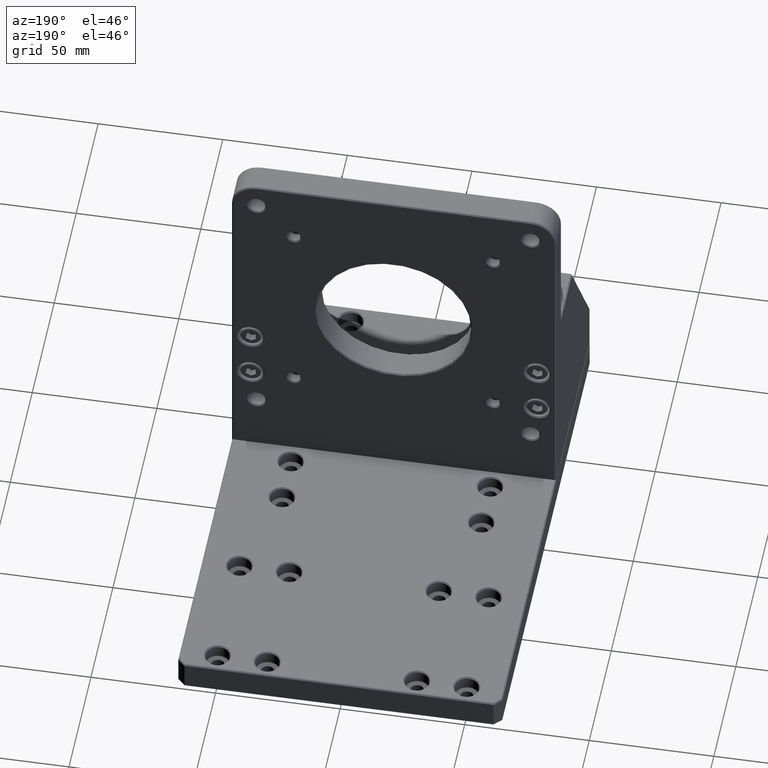
[diagram: clean part render]
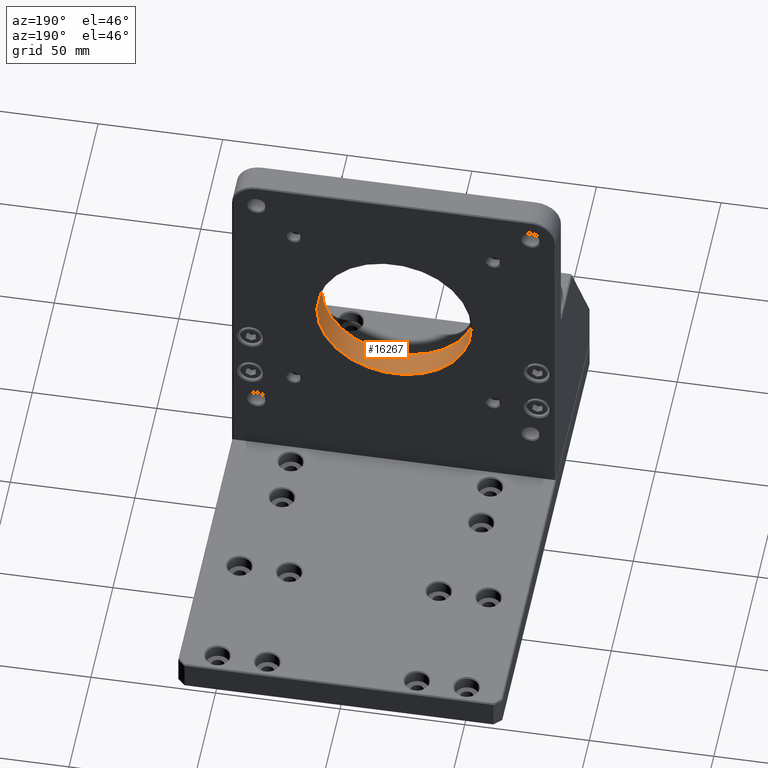
[diagram: same view with one face highlighted and labeled with its STEP entity id]
A machine part, auxiliary view. The second image highlights one B-rep face of the part: STEP entity #16267.
In plain terms, the highlighted cylindrical surface (partial cylindrical patch) has radius 31 mm, axis along (0, -1, 0).
Its self-contained STEP definition (entity closure, byte-faithful):
#45 = LINE ( 'NONE', #1766, #15360 ) ;
#748 = VERTEX_POINT ( 'NONE', #2311 ) ;
#1060 = CIRCLE ( 'NONE', #13923, 31.00000000000000000 ) ;
#1680 = CARTESIAN_POINT ( 'NONE',  ( -31.00000000000114397, -22.99999999999986855, 91.99999999999965894 ) ) ;
#1686 = VERTEX_POINT ( 'NONE', #1680 ) ;
#1766 = CARTESIAN_POINT ( 'NONE',  ( -31.00000000000114397, -22.49999999999987566, 91.99999999999964473 ) ) ;
#2311 = CARTESIAN_POINT ( 'NONE',  ( -31.00000000000106581, -33.99999999999989342, 91.99999999999965894 ) ) ;
#3359 = DIRECTION ( 'NONE',  ( -6.982962677686217801E-15, 1.000000000000000000, -3.491481338843133355E-15 ) ) ;
#3458 = CARTESIAN_POINT ( 'NONE',  ( -1.145495027637149810E-12, -22.49999999999965894, 92.00000000000008527 ) ) ;
#3925 = EDGE_CURVE ( 'NONE', #748, #12133, #1060, .T. ) ;
#4640 = DIRECTION ( 'NONE',  ( 6.982962677686217801E-15, -1.000000000000000000, 3.491481338843133355E-15 ) ) ;
#6203 = ORIENTED_EDGE ( 'NONE', *, *, #3925, .T. ) ;
#6626 = CARTESIAN_POINT ( 'NONE',  ( 30.99999999999885603, -22.49999999999944578, 92.00000000000051159 ) ) ;
#6803 = AXIS2_PLACEMENT_3D ( 'NONE', #8535, #3359, #12466 ) ;
#7205 = DIRECTION ( 'NONE',  ( 6.982962677686217801E-15, -1.000000000000000000, 3.491481338843133355E-15 ) ) ;
#7214 = DIRECTION ( 'NONE',  ( 1.000000000000000000, 6.938893903907228378E-15, 1.387778780781445676E-14 ) ) ;
#8535 = CARTESIAN_POINT ( 'NONE',  ( -1.142003546298306791E-12, -22.99999999999965183, 92.00000000000009948 ) ) ;
#10338 = DIRECTION ( 'NONE',  ( 6.982962677686217801E-15, -1.000000000000000000, 3.491481338843133355E-15 ) ) ;
#10824 = EDGE_CURVE ( 'NONE', #1686, #748, #45, .T. ) ;
#11261 = EDGE_LOOP ( 'NONE', ( #17060, #13381, #6203, #14200 ) ) ;
#11676 = CIRCLE ( 'NONE', #6803, 31.00000000000000000 ) ;
#11967 = VECTOR ( 'NONE', #12162, 1000.000000000000000 ) ;
#12133 = VERTEX_POINT ( 'NONE', #12836 ) ;
#12162 = DIRECTION ( 'NONE',  ( 6.982962677686217801E-15, -1.000000000000000000, 3.491481338843133355E-15 ) ) ;
#12358 = CARTESIAN_POINT ( 'NONE',  ( 30.99999999999885958, -22.99999999999943867, 92.00000000000052580 ) ) ;
#12466 = DIRECTION ( 'NONE',  ( 1.000000000000000000, 6.938893903907228378E-15, 1.387778780781445676E-14 ) ) ;
#12751 = CARTESIAN_POINT ( 'NONE',  ( -1.065190956843758336E-12, -33.99999999999967315, 92.00000000000012790 ) ) ;
#12836 = CARTESIAN_POINT ( 'NONE',  ( 30.99999999999893419, -33.99999999999945999, 92.00000000000055422 ) ) ;
#13381 = ORIENTED_EDGE ( 'NONE', *, *, #10824, .T. ) ;
#13923 = AXIS2_PLACEMENT_3D ( 'NONE', #12751, #4640, #7214 ) ;
#14200 = ORIENTED_EDGE ( 'NONE', *, *, #16836, .F. ) ;
#14948 = EDGE_CURVE ( 'NONE', #15278, #1686, #11676, .T. ) ;
#15029 = LINE ( 'NONE', #6626, #11967 ) ;
#15278 = VERTEX_POINT ( 'NONE', #12358 ) ;
#15360 = VECTOR ( 'NONE', #7205, 1000.000000000000000 ) ;
#15397 = AXIS2_PLACEMENT_3D ( 'NONE', #3458, #10338, #15793 ) ;
#15703 = CYLINDRICAL_SURFACE ( 'NONE', #15397, 31.00000000000000000 ) ;
#15793 = DIRECTION ( 'NONE',  ( 1.000000000000000000, 6.938893903907228378E-15, 1.387778780781445676E-14 ) ) ;
#16053 = FACE_OUTER_BOUND ( 'NONE', #11261, .T. ) ;
#16267 = ADVANCED_FACE ( 'NONE', ( #16053 ), #15703, .F. ) ;
#16836 = EDGE_CURVE ( 'NONE', #15278, #12133, #15029, .T. ) ;
#17060 = ORIENTED_EDGE ( 'NONE', *, *, #14948, .T. ) ;